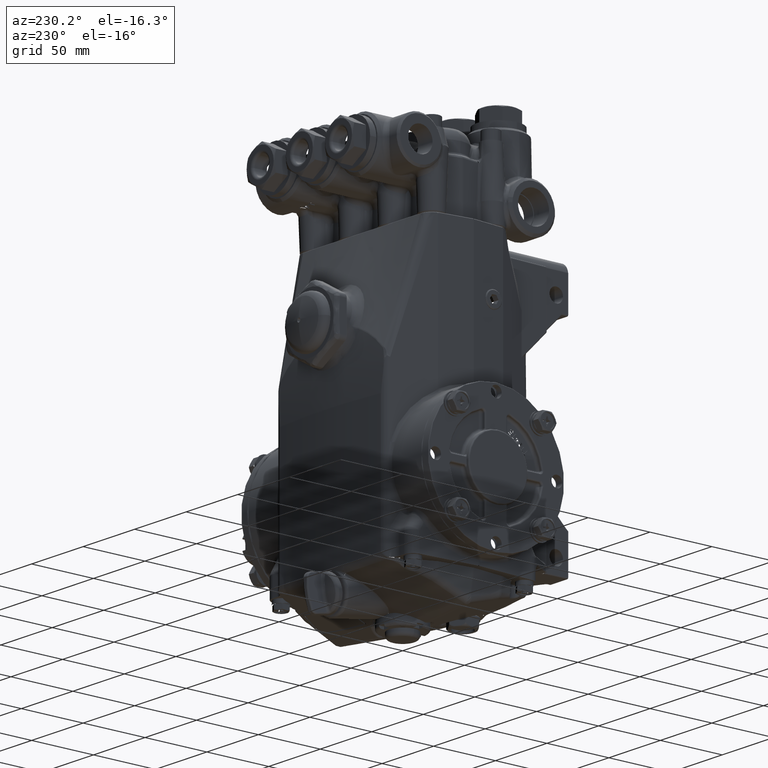
[diagram: clean part render]
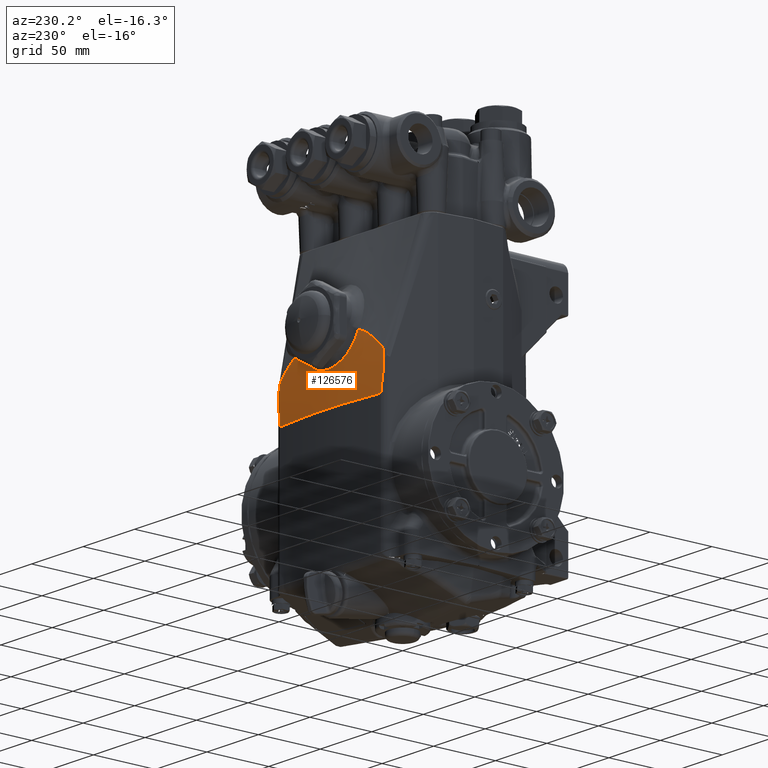
[diagram: same view with one face highlighted and labeled with its STEP entity id]
A machine part, auxiliary view. The second image highlights one B-rep face of the part: STEP entity #126576.
In plain terms, the highlighted spherical surface has radius 400 mm.
Its self-contained STEP definition (entity closure, byte-faithful):
#309 = CARTESIAN_POINT ( 'NONE',  ( -1.215882616484325496, 2.275448044661845692, 3.590007711407256608 ) ) ;
#1779 = B_SPLINE_CURVE_WITH_KNOTS ( 'NONE', 3,
 ( #114983, #135304, #102375, #19002, #70152, #40007, #72219, #72929, #28827, #61729, #134625, #82728, #16915, #37945, #104459, #39327, #18305, #124115 ),
 .UNSPECIFIED., .F., .F.,
 ( 4, 2, 2, 2, 2, 2, 2, 2, 4 ),
 ( 0.000000000000000000, 0.003529259899864219032, 0.007058519799728438064, 0.008823149749660566879, 0.01058777969959269830, 0.01235240964952482624, 0.01323472462449089282, 0.01367588211197390616, 0.01411703959945691950 ),
 .UNSPECIFIED. ) ;
#1955 = CARTESIAN_POINT ( 'NONE',  ( -0.6848078748891650580, 2.356093205011221325, 3.087906755719973528 ) ) ;
#5108 = CARTESIAN_POINT ( 'NONE',  ( -1.961764831594997149, 2.256269388441828561, 2.979986746459271973 ) ) ;
#7378 = CARTESIAN_POINT ( 'NONE',  ( 0.8335840598109685029, 2.336451397788890105, 3.235724623854534521 ) ) ;
#8781 = CARTESIAN_POINT ( 'NONE',  ( -1.381207082854911006, 2.272370453802272650, 3.494630771766859212 ) ) ;
#9378 = CARTESIAN_POINT ( 'NONE',  ( 1.927892502559934051, 2.302806923614977741, 1.830708661417320915 ) ) ;
#10618 = CARTESIAN_POINT ( 'NONE',  ( -2.001576419903768222, 2.281137488307392491, 2.453091225448980950 ) ) ;
#10835 = CARTESIAN_POINT ( 'NONE',  ( -1.949057811450008559, 2.256414865672451864, 2.999454808341418754 ) ) ;
#10921 = CARTESIAN_POINT ( 'NONE',  ( 0.3459411125907738138, 2.381322199738947543, 2.898006173223968585 ) ) ;
#12502 = CARTESIAN_POINT ( 'NONE',  ( -0.9483924987203909973, 2.312937071081005769, 3.412417493990044903 ) ) ;
#12944 = CARTESIAN_POINT ( 'NONE',  ( -2.001576419903768222, 2.281137488307392491, 2.453091225448980950 ) ) ;
#14331 = EDGE_CURVE ( 'NONE', #123356, #32140, #30245, .T. ) ;
#14520 = CARTESIAN_POINT ( 'NONE',  ( -0.6288166618527482044, 2.361856509732364717, 3.044502303583398906 ) ) ;
#14916 = CARTESIAN_POINT ( 'NONE',  ( -2.005224552404796245, 2.269797841127123572, 2.684367243388792623 ) ) ;
#15612 = CARTESIAN_POINT ( 'NONE',  ( -1.970988110495844436, 2.256663674456286905, 2.958706884834227946 ) ) ;
#16487 = VERTEX_POINT ( 'NONE', #57324 ) ;
#16915 = CARTESIAN_POINT ( 'NONE',  ( 1.970988110495844436, 2.256663674456286905, 2.958706884834227946 ) ) ;
#17041 = AXIS2_PLACEMENT_3D ( 'NONE', #117156, #126963, #106611 ) ;
#18305 = CARTESIAN_POINT ( 'NONE',  ( 1.952924190996097709, 2.256269410993728020, 2.994946429955310130 ) ) ;
#19002 = CARTESIAN_POINT ( 'NONE',  ( 2.005368143869108000, 2.272242917778425575, 2.638102130798434697 ) ) ;
#21353 = CARTESIAN_POINT ( 'NONE',  ( -1.683334220814759918, 2.265126894569809313, 3.268929706690696158 ) ) ;
#21908 = VERTEX_POINT ( 'NONE', #135251 ) ;
#22132 = CARTESIAN_POINT ( 'NONE',  ( 0.2491602042918082405, 2.384894058824540863, 2.871194229302862500 ) ) ;
#22716 = CARTESIAN_POINT ( 'NONE',  ( 0.5702884691809608775, 2.367005519145476189, 3.005708711163603386 ) ) ;
#23468 = CARTESIAN_POINT ( 'NONE',  ( -1.927892502559934051, 2.302806923614977741, 1.830708661417320915 ) ) ;
#23622 = EDGE_LOOP ( 'NONE', ( #37201, #121190, #44718, #52266, #114276, #120176, #120528, #131893, #109764, #120736 ) ) ;
#23702 = CARTESIAN_POINT ( 'NONE',  ( -0.7115365225098547741, 2.353046370876237692, 3.110847001961258851 ) ) ;
#24767 = CARTESIAN_POINT ( 'NONE',  ( -1.997329197246726418, 2.262563852260918829, 2.822841268974634499 ) ) ;
#25061 = CARTESIAN_POINT ( 'NONE',  ( -1.006818633431339371, 2.296109154301484878, 3.538724115484670918 ) ) ;
#26895 = CARTESIAN_POINT ( 'NONE',  ( 1.927892502559934051, 2.302806923614977741, 1.830708661417320915 ) ) ;
#28108 = CARTESIAN_POINT ( 'NONE',  ( 1.257727860685931232, 2.274705715646828441, 3.567025912928852183 ) ) ;
#28416 = CARTESIAN_POINT ( 'NONE',  ( 0.9136489514333505646, 2.321039764364654978, 3.351558284782972574 ) ) ;
#28827 = CARTESIAN_POINT ( 'NONE',  ( 1.994845498619951973, 2.261403890517909687, 2.845796398725158660 ) ) ;
#29204 = CARTESIAN_POINT ( 'NONE',  ( -0.3461069403406819567, 2.381314139981727251, 2.898066709866154333 ) ) ;
#29658 = CARTESIAN_POINT ( 'NONE',  ( 1.953303414656376358, 2.299672513645310445, 2.038186688167588301 ) ) ;
#30245 = B_SPLINE_CURVE_WITH_KNOTS ( 'NONE', 3,
 ( #133905, #122683, #58892, #60303, #101643, #71496, #135271, #28108, #136651, #135953, #103728, #104424 ),
 .UNSPECIFIED., .F., .F.,
 ( 4, 2, 2, 2, 2, 4 ),
 ( 0.000000000000000000, 0.007175936972554452717, 0.01435187394510890543, 0.02152781091766335642, 0.02511577940394058364, 0.02870374789021781087 ),
 .UNSPECIFIED. ) ;
#30793 = CARTESIAN_POINT ( 'NONE',  ( -1.044844111123498953, 2.278129621892933887, 3.673492687919328592 ) ) ;
#31279 = CARTESIAN_POINT ( 'NONE',  ( 0.04989968886445315249, 2.388729640950126853, 2.842425201590969674 ) ) ;
#32140 = VERTEX_POINT ( 'NONE', #129762 ) ;
#32693 = CARTESIAN_POINT ( 'NONE',  ( -1.927892502559934051, 2.302806923614977741, 1.830708661417320915 ) ) ;
#35267 = B_SPLINE_CURVE_WITH_KNOTS ( 'NONE', 3,
 ( #92125, #134885, #91427, #136268, #38904, #28416, #60619, #7378, #50113, #40289, #135577, #72497, #128534, #22716 ),
 .UNSPECIFIED., .F., .F.,
 ( 4, 2, 2, 2, 2, 2, 4 ),
 ( 3.179800655392250756E-17, 0.005337828596166024724, 0.008006742894248998488, 0.01067565719233197138, 0.01601348578849792759, 0.01868240008658091783, 0.02135131438466390807 ),
 .UNSPECIFIED. ) ;
#35563 = CARTESIAN_POINT ( 'NONE',  ( -0.9641689071305775682, 2.308796039186415516, 3.443508886911414546 ) ) ;
#36649 = CARTESIAN_POINT ( 'NONE',  ( -2.001576419903768222, 2.281137488307392491, 2.453091225448980950 ) ) ;
#36911 = CARTESIAN_POINT ( 'NONE',  ( -0.2002549119606213957, 2.386277278607174424, 2.860816177407108363 ) ) ;
#37201 = ORIENTED_EDGE ( 'NONE', *, *, #82680, .T. ) ;
#37945 = CARTESIAN_POINT ( 'NONE',  ( 1.964239369917842870, 2.256342683015828854, 2.974754533992896910 ) ) ;
#38904 = CARTESIAN_POINT ( 'NONE',  ( 0.9483924987203909973, 2.312937071081005769, 3.412417493990044903 ) ) ;
#39327 = CARTESIAN_POINT ( 'NONE',  ( 1.956097509142209478, 2.256234334054407764, 2.990077633166706050 ) ) ;
#40007 = CARTESIAN_POINT ( 'NONE',  ( 2.002498275713926468, 2.266150297017755388, 2.753648161478894352 ) ) ;
#40289 = CARTESIAN_POINT ( 'NONE',  ( 0.7115365225098547741, 2.353046370876237692, 3.110847001961258851 ) ) ;
#40861 = CARTESIAN_POINT ( 'NONE',  ( 2.001576419903768222, 2.281137488307392491, 2.453091225448980950 ) ) ;
#41145 = EDGE_CURVE ( 'NONE', #134894, #112976, #100562, .T. ) ;
#41786 = CARTESIAN_POINT ( 'NONE',  ( 0.5702884691809608775, 2.367005519145476189, 3.005708711163603386 ) ) ;
#42458 = CARTESIAN_POINT ( 'NONE',  ( 0.1751118453464434455, 2.386866896408385674, 2.856393633350263084 ) ) ;
#43062 = CARTESIAN_POINT ( 'NONE',  ( -1.088300396420667449, 2.277507973392359553, 3.654117503529255462 ) ) ;
#44718 = ORIENTED_EDGE ( 'NONE', *, *, #135893, .T. ) ;
#45381 = CARTESIAN_POINT ( 'NONE',  ( -0.8335840598109685029, 2.336451397788890105, 3.235724623854534521 ) ) ;
#47155 = CARTESIAN_POINT ( 'NONE',  ( -1.983840277035706645, 2.258214135973027670, 2.914050116664701040 ) ) ;
#47852 = CARTESIAN_POINT ( 'NONE',  ( -1.952924190996097709, 2.256269410993728020, 2.994946429955310130 ) ) ;
#50113 = CARTESIAN_POINT ( 'NONE',  ( 0.7878066984399768602, 2.343454821086583095, 3.183040546554192218 ) ) ;
#50435 = EDGE_CURVE ( 'NONE', #93610, #16487, #99126, .T. ) ;
#52266 = ORIENTED_EDGE ( 'NONE', *, *, #50435, .T. ) ;
#52277 = CARTESIAN_POINT ( 'NONE',  ( 0.2736643852405061250, 2.384080820906782971, 2.877297054704607948 ) ) ;
#52970 = CARTESIAN_POINT ( 'NONE',  ( 0.3927398138396143712, 2.379053569892330522, 2.915045312186761439 ) ) ;
#53428 = FACE_OUTER_BOUND ( 'NONE', #23622, .T. ) ;
#53566 = CARTESIAN_POINT ( 'NONE',  ( -1.460060792963529641, 2.270686684880657946, 3.442199851710500358 ) ) ;
#55078 = B_SPLINE_CURVE_WITH_KNOTS ( 'NONE', 3,
 ( #82411, #92923, #135680, #125175, #29204, #114663, #104138, #36911, #122402, #69116, #64864, #31279, #126557, #42458, #73990, #22132, #52277, #10921, #52970, #85189, #63467, #41786 ),
 .UNSPECIFIED., .F., .F.,
 ( 4, 2, 2, 2, 2, 2, 2, 2, 2, 2, 4 ),
 ( 0.000000000000000000, 0.003790329581844058878, 0.007580659163688117756, 0.009475823954610143943, 0.01137098874553217273, 0.01516131832737622857, 0.01895164790922028095, 0.02084681270014230800, 0.02274197749106433158, 0.02653230707290838569, 0.03032263665475243633 ),
 .UNSPECIFIED. ) ;
#56140 = CARTESIAN_POINT ( 'NONE',  ( -1.949057811450008559, 2.256414865672451864, 2.999454808341418754 ) ) ;
#56273 = CARTESIAN_POINT ( 'NONE',  ( -2.003333461490679035, 2.277016516826769088, 2.545614934604716773 ) ) ;
#57324 = CARTESIAN_POINT ( 'NONE',  ( -1.044844111123498953, 2.278129621892933887, 3.673492687919328592 ) ) ;
#57651 = CARTESIAN_POINT ( 'NONE',  ( -1.988059967492328495, 2.259234664743568377, 2.891393856110480165 ) ) ;
#57946 = CARTESIAN_POINT ( 'NONE',  ( -1.029058060304435696, 2.287302053418479364, 3.604770078891716079 ) ) ;
#58892 = CARTESIAN_POINT ( 'NONE',  ( 1.821198847973720669, 2.260974718456610244, 3.140209332294509714 ) ) ;
#59040 = CARTESIAN_POINT ( 'NONE',  ( -2.001165032535133559, 2.264937876464300448, 2.776734554355601237 ) ) ;
#60303 = CARTESIAN_POINT ( 'NONE',  ( 1.683334220814759918, 2.265126894569809313, 3.268929706690696158 ) ) ;
#60619 = CARTESIAN_POINT ( 'NONE',  ( 0.8945695392071200125, 2.325019902664851923, 3.321651507435355200 ) ) ;
#60738 = EDGE_CURVE ( 'NONE', #124639, #123356, #1779, .T. ) ;
#61729 = CARTESIAN_POINT ( 'NONE',  ( 1.988059967492328495, 2.259234664743568377, 2.891393856110480165 ) ) ;
#62012 = CARTESIAN_POINT ( 'NONE',  ( -1.257727860685931232, 2.274705715646828441, 3.567025912928852183 ) ) ;
#63467 = CARTESIAN_POINT ( 'NONE',  ( 0.5276636660254691025, 2.370559326700491631, 2.978930644091032587 ) ) ;
#63632 = VERTEX_POINT ( 'NONE', #9378 ) ;
#64057 = CIRCLE ( 'NONE', #17041, 15.74803149606299257 ) ;
#64864 = CARTESIAN_POINT ( 'NONE',  ( -0.05100169217006520622, 2.388722802593651995, 2.842476470926388998 ) ) ;
#66186 = CARTESIAN_POINT ( 'NONE',  ( -1.953303414656376358, 2.299672513645310445, 2.038186688167588301 ) ) ;
#67467 = CARTESIAN_POINT ( 'NONE',  ( -1.994845498619951973, 2.261403890517909687, 2.845796398725158660 ) ) ;
#69116 = CARTESIAN_POINT ( 'NONE',  ( -0.1010499091316106463, 2.388252204363619402, 2.846004134954266629 ) ) ;
#70152 = CARTESIAN_POINT ( 'NONE',  ( 2.005224552404796245, 2.269797841127123572, 2.684367243388792623 ) ) ;
#71496 = CARTESIAN_POINT ( 'NONE',  ( 1.460060792963529641, 2.270686684880657946, 3.442199851710500358 ) ) ;
#72219 = CARTESIAN_POINT ( 'NONE',  ( 2.001165032535133559, 2.264937876464300448, 2.776734554355601237 ) ) ;
#72497 = CARTESIAN_POINT ( 'NONE',  ( 0.6288166618527482044, 2.361856509732364717, 3.044502303583398906 ) ) ;
#72929 = CARTESIAN_POINT ( 'NONE',  ( 1.997329197246726418, 2.262563852260918829, 2.822841268974634499 ) ) ;
#73990 = CARTESIAN_POINT ( 'NONE',  ( 0.1998968626369754531, 2.386286262298682903, 2.860748786499644147 ) ) ;
#74446 = CARTESIAN_POINT ( 'NONE',  ( 0.000000000000000000, -13.32677165354330917, 1.830708661417320915 ) ) ;
#76919 = CARTESIAN_POINT ( 'NONE',  ( -0.7878066984399768602, 2.343454821086583095, 3.183040546554192218 ) ) ;
#78278 = CARTESIAN_POINT ( 'NONE',  ( -0.5999664687285685138, 2.364531140586461078, 3.024353242132262753 ) ) ;
#79238 = DIRECTION ( 'NONE',  ( 0.1736481776669307475, 0.9848077530122080203, 0.000000000000000000 ) ) ;
#79368 = CARTESIAN_POINT ( 'NONE',  ( -1.974594754226575377, 2.257011614718536840, 2.947536695800969220 ) ) ;
#80941 = EDGE_CURVE ( 'NONE', #63632, #124639, #137396, .T. ) ;
#82411 = CARTESIAN_POINT ( 'NONE',  ( -0.5702884691809608775, 2.367005519145476189, 3.005708711163603386 ) ) ;
#82680 = EDGE_CURVE ( 'NONE', #63632, #134894, #64057, .T. ) ;
#82728 = CARTESIAN_POINT ( 'NONE',  ( 1.974594754226575377, 2.257011614718536840, 2.947536695800969220 ) ) ;
#83709 = CARTESIAN_POINT ( 'NONE',  ( -1.886845472850523286, 2.258762711942250867, 3.071898698985475296 ) ) ;
#84402 = CARTESIAN_POINT ( 'NONE',  ( -1.611105018309885617, 2.267069278080288353, 3.329325895273369085 ) ) ;
#84957 = CARTESIAN_POINT ( 'NONE',  ( 1.978219032163935021, 2.292400702220907416, 2.245753118094478307 ) ) ;
#84961 = SPHERICAL_SURFACE ( 'NONE', #86200, 15.74803149606299257 ) ;
#85189 = CARTESIAN_POINT ( 'NONE',  ( 0.4836008212173899534, 2.373672059218960406, 2.955508177235780298 ) ) ;
#86200 = AXIS2_PLACEMENT_3D ( 'NONE', #74446, #117211, #79238 ) ;
#89868 = CARTESIAN_POINT ( 'NONE',  ( 2.001576419903768222, 2.281137488307392491, 2.453091225448980950 ) ) ;
#91427 = CARTESIAN_POINT ( 'NONE',  ( 1.006818633431339371, 2.296109154301484878, 3.538724115484670918 ) ) ;
#91938 = CARTESIAN_POINT ( 'NONE',  ( -0.5702884691809608775, 2.367005519145476189, 3.005708711163603386 ) ) ;
#92125 = CARTESIAN_POINT ( 'NONE',  ( 1.044844111123498953, 2.278129621892933887, 3.673492687919328592 ) ) ;
#92923 = CARTESIAN_POINT ( 'NONE',  ( -0.5276622036187942344, 2.370559448627436172, 2.978929725367165382 ) ) ;
#93610 = VERTEX_POINT ( 'NONE', #56140 ) ;
#96817 = B_SPLINE_CURVE_WITH_KNOTS ( 'NONE', 3,
 ( #36649, #110882, #56273, #99025, #14916, #120753, #59040, #24767, #67467, #57651, #47155, #79368, #15612, #122137, #5108, #122825, #47852, #133343 ),
 .UNSPECIFIED., .F., .F.,
 ( 4, 2, 2, 2, 2, 2, 2, 2, 4 ),
 ( 0.000000000000000000, 0.003529259899864219032, 0.007058519799728438064, 0.008823149749660566879, 0.01058777969959269830, 0.01235240964952482624, 0.01323472462449089282, 0.01367588211197390616, 0.01411703959945691950 ),
 .UNSPECIFIED. ) ;
#98638 = CARTESIAN_POINT ( 'NONE',  ( -0.5702884691809608775, 2.367005519145476189, 3.005708711163603386 ) ) ;
#99025 = CARTESIAN_POINT ( 'NONE',  ( -2.005368143869108000, 2.272242917778425575, 2.638102130798434697 ) ) ;
#99126 = B_SPLINE_CURVE_WITH_KNOTS ( 'NONE', 3,
 ( #10835, #83709, #118047, #21353, #84402, #53566, #8781, #62012, #309, #104748, #43062, #117354 ),
 .UNSPECIFIED., .F., .F.,
 ( 4, 2, 2, 2, 2, 4 ),
 ( 0.000000000000000000, 0.007175936972554452717, 0.01435187394510890543, 0.02152781091766335642, 0.02511577940394058364, 0.02870374789021781087 ),
 .UNSPECIFIED. ) ;
#100562 = B_SPLINE_CURVE_WITH_KNOTS ( 'NONE', 3,
 ( #23468, #66186, #108906, #12944 ),
 .UNSPECIFIED., .F., .F.,
 ( 4, 4 ),
 ( -0.0001264911079878683277, 0.01580325867421138869 ),
 .UNSPECIFIED. ) ;
#101643 = CARTESIAN_POINT ( 'NONE',  ( 1.611105018309885617, 2.267069278080288353, 3.329325895273369085 ) ) ;
#102375 = CARTESIAN_POINT ( 'NONE',  ( 2.003333461490679035, 2.277016516826769088, 2.545614934604716773 ) ) ;
#103728 = CARTESIAN_POINT ( 'NONE',  ( 1.088300396420667449, 2.277507973392359553, 3.654117503529255462 ) ) ;
#104138 = CARTESIAN_POINT ( 'NONE',  ( -0.2495064303752211610, 2.384883123041162012, 2.871276290670804254 ) ) ;
#104424 = CARTESIAN_POINT ( 'NONE',  ( 1.044844111123498953, 2.278129621892933887, 3.673492687919328592 ) ) ;
#104459 = CARTESIAN_POINT ( 'NONE',  ( 1.961764831594997149, 2.256269388441828561, 2.979986746459271973 ) ) ;
#104748 = CARTESIAN_POINT ( 'NONE',  ( -1.131200944370449601, 2.276846987438524650, 3.633548899953404021 ) ) ;
#105470 = VERTEX_POINT ( 'NONE', #91938 ) ;
#106611 = DIRECTION ( 'NONE',  ( 1.000000000000000000, 0.000000000000000000, 0.000000000000000000 ) ) ;
#108666 = CARTESIAN_POINT ( 'NONE',  ( 1.949057811450008559, 2.256414865672451864, 2.999454808341418754 ) ) ;
#108906 = CARTESIAN_POINT ( 'NONE',  ( -1.978219032163935021, 2.292400702220907416, 2.245753118094478307 ) ) ;
#109764 = ORIENTED_EDGE ( 'NONE', *, *, #60738, .F. ) ;
#110882 = CARTESIAN_POINT ( 'NONE',  ( -2.002408460093124010, 2.279185801242008313, 2.499359170649460005 ) ) ;
#111465 = EDGE_CURVE ( 'NONE', #105470, #21908, #55078, .T. ) ;
#112976 = VERTEX_POINT ( 'NONE', #10618 ) ;
#114276 = ORIENTED_EDGE ( 'NONE', *, *, #118068, .T. ) ;
#114663 = CARTESIAN_POINT ( 'NONE',  ( -0.2739680406290339043, 2.384070089471266751, 2.877377600494809951 ) ) ;
#114983 = CARTESIAN_POINT ( 'NONE',  ( 2.001576419903768222, 2.281137488307392491, 2.453091225448980950 ) ) ;
#117156 = CARTESIAN_POINT ( 'NONE',  ( 0.000000000000000000, -13.32677165354330917, 1.830708661417320915 ) ) ;
#117211 = DIRECTION ( 'NONE',  ( -0.9848077530122080203, 0.1736481776669307475, 0.000000000000000000 ) ) ;
#117354 = CARTESIAN_POINT ( 'NONE',  ( -1.044844111123498953, 2.278129621892933887, 3.673492687919328592 ) ) ;
#118047 = CARTESIAN_POINT ( 'NONE',  ( -1.821198847973720669, 2.260974718456610244, 3.140209332294509714 ) ) ;
#118068 = EDGE_CURVE ( 'NONE', #16487, #105470, #128263, .T. ) ;
#119695 = CARTESIAN_POINT ( 'NONE',  ( -0.9136489514333505646, 2.321039764364654978, 3.351558284782972574 ) ) ;
#120176 = ORIENTED_EDGE ( 'NONE', *, *, #111465, .T. ) ;
#120528 = ORIENTED_EDGE ( 'NONE', *, *, #122918, .F. ) ;
#120736 = ORIENTED_EDGE ( 'NONE', *, *, #80941, .F. ) ;
#120753 = CARTESIAN_POINT ( 'NONE',  ( -2.002498275713926468, 2.266150297017755388, 2.753648161478894352 ) ) ;
#121048 = CARTESIAN_POINT ( 'NONE',  ( -0.8945695392071200125, 2.325019902664851923, 3.321651507435355200 ) ) ;
#121190 = ORIENTED_EDGE ( 'NONE', *, *, #41145, .T. ) ;
#122137 = CARTESIAN_POINT ( 'NONE',  ( -1.964239369917842870, 2.256342683015828854, 2.974754533992896910 ) ) ;
#122402 = CARTESIAN_POINT ( 'NONE',  ( -0.1755282066423213549, 2.386857446300961527, 2.856464515054224051 ) ) ;
#122683 = CARTESIAN_POINT ( 'NONE',  ( 1.886845472850523286, 2.258762711942250867, 3.071898698985475296 ) ) ;
#122825 = CARTESIAN_POINT ( 'NONE',  ( -1.956097509142209478, 2.256234334054407764, 2.990077633166706050 ) ) ;
#122918 = EDGE_CURVE ( 'NONE', #32140, #21908, #35267, .T. ) ;
#123356 = VERTEX_POINT ( 'NONE', #108666 ) ;
#124115 = CARTESIAN_POINT ( 'NONE',  ( 1.949057811450008559, 2.256414865672451864, 2.999454808341418754 ) ) ;
#124639 = VERTEX_POINT ( 'NONE', #89868 ) ;
#125175 = CARTESIAN_POINT ( 'NONE',  ( -0.3928408438565980654, 2.379048024697140828, 2.915086989453071098 ) ) ;
#126557 = CARTESIAN_POINT ( 'NONE',  ( 0.1002980064839650021, 2.388262926410428921, 2.845923738141571846 ) ) ;
#126576 = ADVANCED_FACE ( 'NONE', ( #53428 ), #84961, .T. ) ;
#126963 = DIRECTION ( 'NONE',  ( -0.000000000000000000, -0.000000000000000000, 1.000000000000000000 ) ) ;
#128263 = B_SPLINE_CURVE_WITH_KNOTS ( 'NONE', 3,
 ( #30793, #57946, #25061, #35563, #12502, #119695, #121048, #45381, #76919, #23702, #1955, #14520, #78278, #98638 ),
 .UNSPECIFIED., .F., .F.,
 ( 4, 2, 2, 2, 2, 2, 4 ),
 ( 3.179800655392250756E-17, 0.005337828596166024724, 0.008006742894248998488, 0.01067565719233197138, 0.01601348578849792759, 0.01868240008658091783, 0.02135131438466390807 ),
 .UNSPECIFIED. ) ;
#128534 = CARTESIAN_POINT ( 'NONE',  ( 0.5999664687285685138, 2.364531140586461078, 3.024353242132262753 ) ) ;
#129762 = CARTESIAN_POINT ( 'NONE',  ( 1.044844111123498953, 2.278129621892933887, 3.673492687919328592 ) ) ;
#131893 = ORIENTED_EDGE ( 'NONE', *, *, #14331, .F. ) ;
#133343 = CARTESIAN_POINT ( 'NONE',  ( -1.949057811450008559, 2.256414865672451864, 2.999454808341418754 ) ) ;
#133905 = CARTESIAN_POINT ( 'NONE',  ( 1.949057811450008559, 2.256414865672451864, 2.999454808341418754 ) ) ;
#134625 = CARTESIAN_POINT ( 'NONE',  ( 1.983840277035706645, 2.258214135973027670, 2.914050116664701040 ) ) ;
#134885 = CARTESIAN_POINT ( 'NONE',  ( 1.029058060304435696, 2.287302053418479364, 3.604770078891716079 ) ) ;
#134894 = VERTEX_POINT ( 'NONE', #32693 ) ;
#135251 = CARTESIAN_POINT ( 'NONE',  ( 0.5702884691809608775, 2.367005519145476189, 3.005708711163603386 ) ) ;
#135271 = CARTESIAN_POINT ( 'NONE',  ( 1.381207082854911006, 2.272370453802272650, 3.494630771766859212 ) ) ;
#135304 = CARTESIAN_POINT ( 'NONE',  ( 2.002408460093124010, 2.279185801242008313, 2.499359170649460005 ) ) ;
#135577 = CARTESIAN_POINT ( 'NONE',  ( 0.6848078748891650580, 2.356093205011221325, 3.087906755719973528 ) ) ;
#135680 = CARTESIAN_POINT ( 'NONE',  ( -0.4836181709195255807, 2.373670592454414585, 2.955519221986051548 ) ) ;
#135893 = EDGE_CURVE ( 'NONE', #112976, #93610, #96817, .T. ) ;
#135953 = CARTESIAN_POINT ( 'NONE',  ( 1.131200944370449601, 2.276846987438524650, 3.633548899953404021 ) ) ;
#136268 = CARTESIAN_POINT ( 'NONE',  ( 0.9641689071305775682, 2.308796039186415516, 3.443508886911414546 ) ) ;
#136651 = CARTESIAN_POINT ( 'NONE',  ( 1.215882616484325496, 2.275448044661845692, 3.590007711407256608 ) ) ;
#137396 = B_SPLINE_CURVE_WITH_KNOTS ( 'NONE', 3,
 ( #26895, #29658, #84957, #40861 ),
 .UNSPECIFIED., .F., .F.,
 ( 4, 4 ),
 ( -0.0001264911079878683277, 0.01580325867421138869 ),
 .UNSPECIFIED. ) ;